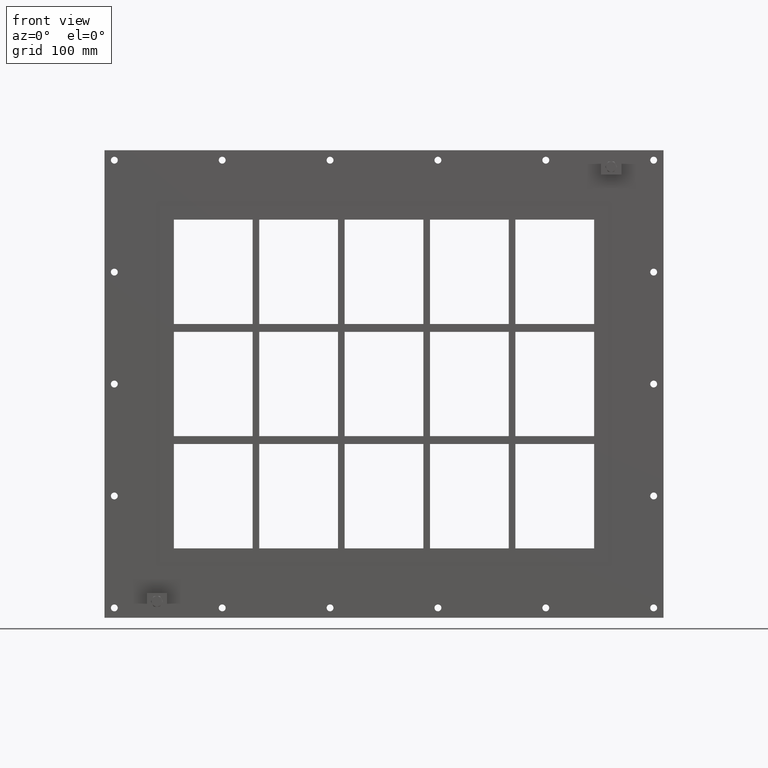
[diagram: clean part render]
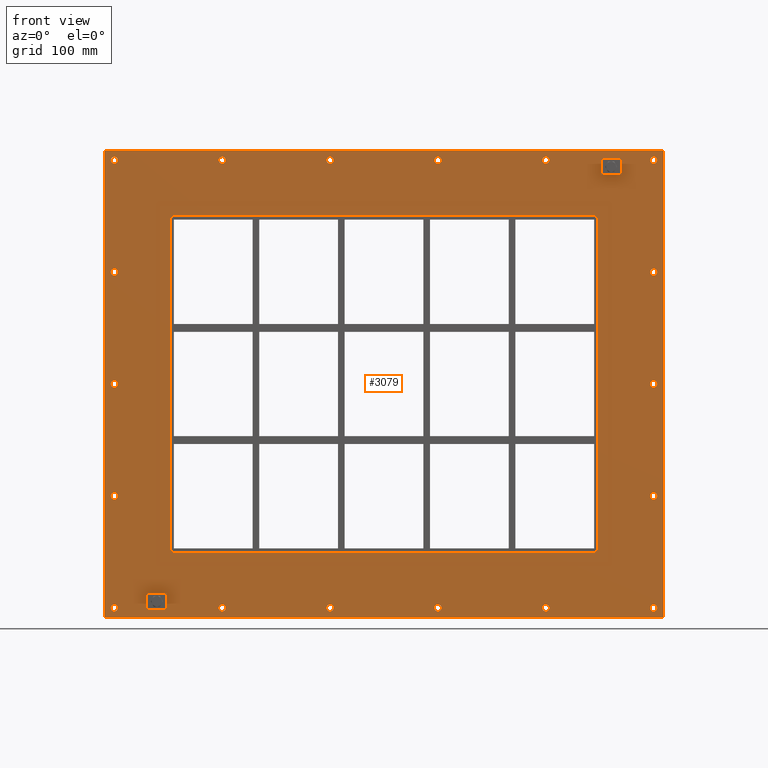
[diagram: same view with one face highlighted and labeled with its STEP entity id]
A machine part, front view. The second image highlights one B-rep face of the part: STEP entity #3079.
In plain terms, the highlighted planar face has unit normal (0, 1, 0).
Its self-contained STEP definition (entity closure, byte-faithful):
#84=CARTESIAN_POINT('',(-407.00000000000011,0.0,-342.25000000000011));
#85=VERTEX_POINT('',#84);
#86=CARTESIAN_POINT('',(-412.25000000000011,0.0,-342.25000000000011));
#87=DIRECTION('',(0.0,1.0,0.0));
#88=DIRECTION('',(1.0,0.0,0.0));
#89=AXIS2_PLACEMENT_3D('',#86,#87,#88);
#90=CIRCLE('',#89,5.25);
#91=EDGE_CURVE('',#85,#85,#90,.T.);
#112=CARTESIAN_POINT('',(417.50000000000006,0.0,-171.15000000000009));
#113=VERTEX_POINT('',#112);
#114=CARTESIAN_POINT('',(412.25000000000011,0.0,-171.15000000000009));
#115=DIRECTION('',(0.0,1.0,0.0));
#116=DIRECTION('',(1.0,0.0,0.0));
#117=AXIS2_PLACEMENT_3D('',#114,#115,#116);
#118=CIRCLE('',#117,5.25);
#119=EDGE_CURVE('',#113,#113,#118,.T.);
#140=CARTESIAN_POINT('',(-407.00000000000011,0.0,-171.15000000000009));
#141=VERTEX_POINT('',#140);
#142=CARTESIAN_POINT('',(-412.25000000000011,0.0,-171.15000000000009));
#143=DIRECTION('',(0.0,1.0,0.0));
#144=DIRECTION('',(1.0,0.0,0.0));
#145=AXIS2_PLACEMENT_3D('',#142,#143,#144);
#146=CIRCLE('',#145,5.25);
#147=EDGE_CURVE('',#141,#141,#146,.T.);
#168=CARTESIAN_POINT('',(417.50000000000006,0.0,-0.050000000000097));
#169=VERTEX_POINT('',#168);
#170=CARTESIAN_POINT('',(412.25000000000011,0.0,-0.050000000000097));
#171=DIRECTION('',(0.0,1.0,0.0));
#172=DIRECTION('',(1.0,0.0,0.0));
#173=AXIS2_PLACEMENT_3D('',#170,#171,#172);
#174=CIRCLE('',#173,5.25);
#175=EDGE_CURVE('',#169,#169,#174,.T.);
#196=CARTESIAN_POINT('',(-407.00000000000011,0.0,-0.050000000000097));
#197=VERTEX_POINT('',#196);
#198=CARTESIAN_POINT('',(-412.25000000000011,0.0,-0.050000000000097));
#199=DIRECTION('',(0.0,1.0,0.0));
#200=DIRECTION('',(1.0,0.0,0.0));
#201=AXIS2_PLACEMENT_3D('',#198,#199,#200);
#202=CIRCLE('',#201,5.25);
#203=EDGE_CURVE('',#197,#197,#202,.T.);
#224=CARTESIAN_POINT('',(417.50000000000006,0.0,171.0499999999999));
#225=VERTEX_POINT('',#224);
#226=CARTESIAN_POINT('',(412.25000000000011,0.0,171.0499999999999));
#227=DIRECTION('',(0.0,1.0,0.0));
#228=DIRECTION('',(1.0,0.0,0.0));
#229=AXIS2_PLACEMENT_3D('',#226,#227,#228);
#230=CIRCLE('',#229,5.25);
#231=EDGE_CURVE('',#225,#225,#230,.T.);
#252=CARTESIAN_POINT('',(-407.00000000000011,0.0,171.0499999999999));
#253=VERTEX_POINT('',#252);
#254=CARTESIAN_POINT('',(-412.25000000000011,0.0,171.0499999999999));
#255=DIRECTION('',(0.0,1.0,0.0));
#256=DIRECTION('',(1.0,0.0,0.0));
#257=AXIS2_PLACEMENT_3D('',#254,#255,#256);
#258=CIRCLE('',#257,5.25);
#259=EDGE_CURVE('',#253,#253,#258,.T.);
#280=CARTESIAN_POINT('',(-242.10000000000002,0.0,342.14999999999986));
#281=VERTEX_POINT('',#280);
#282=CARTESIAN_POINT('',(-247.34999999999999,0.0,342.14999999999986));
#283=DIRECTION('',(0.0,1.0,0.0));
#284=DIRECTION('',(1.0,0.0,0.0));
#285=AXIS2_PLACEMENT_3D('',#282,#283,#284);
#286=CIRCLE('',#285,5.25);
#287=EDGE_CURVE('',#281,#281,#286,.T.);
#308=CARTESIAN_POINT('',(-242.10000000000002,0.0,-342.25000000000011));
#309=VERTEX_POINT('',#308);
#310=CARTESIAN_POINT('',(-247.34999999999999,0.0,-342.25000000000011));
#311=DIRECTION('',(0.0,1.0,0.0));
#312=DIRECTION('',(1.0,0.0,0.0));
#313=AXIS2_PLACEMENT_3D('',#310,#311,#312);
#314=CIRCLE('',#313,5.25);
#315=EDGE_CURVE('',#309,#309,#314,.T.);
#336=CARTESIAN_POINT('',(-77.199999999999989,0.0,342.14999999999986));
#337=VERTEX_POINT('',#336);
#338=CARTESIAN_POINT('',(-82.449999999999974,0.0,342.14999999999986));
#339=DIRECTION('',(0.0,1.0,0.0));
#340=DIRECTION('',(1.0,0.0,0.0));
#341=AXIS2_PLACEMENT_3D('',#338,#339,#340);
#342=CIRCLE('',#341,5.25);
#343=EDGE_CURVE('',#337,#337,#342,.T.);
#364=CARTESIAN_POINT('',(-77.199999999999989,0.0,-342.25000000000011));
#365=VERTEX_POINT('',#364);
#366=CARTESIAN_POINT('',(-82.449999999999974,0.0,-342.25000000000011));
#367=DIRECTION('',(0.0,1.0,0.0));
#368=DIRECTION('',(1.0,0.0,0.0));
#369=AXIS2_PLACEMENT_3D('',#366,#367,#368);
#370=CIRCLE('',#369,5.25);
#371=EDGE_CURVE('',#365,#365,#370,.T.);
#392=CARTESIAN_POINT('',(87.700000000000031,0.0,342.14999999999986));
#393=VERTEX_POINT('',#392);
#394=CARTESIAN_POINT('',(82.450000000000045,0.0,342.14999999999986));
#395=DIRECTION('',(0.0,1.0,0.0));
#396=DIRECTION('',(1.0,0.0,0.0));
#397=AXIS2_PLACEMENT_3D('',#394,#395,#396);
#398=CIRCLE('',#397,5.25);
#399=EDGE_CURVE('',#393,#393,#398,.T.);
#420=CARTESIAN_POINT('',(87.700000000000031,0.0,-342.25000000000011));
#421=VERTEX_POINT('',#420);
#422=CARTESIAN_POINT('',(82.450000000000045,0.0,-342.25000000000011));
#423=DIRECTION('',(0.0,1.0,0.0));
#424=DIRECTION('',(1.0,0.0,0.0));
#425=AXIS2_PLACEMENT_3D('',#422,#423,#424);
#426=CIRCLE('',#425,5.25);
#427=EDGE_CURVE('',#421,#421,#426,.T.);
#448=CARTESIAN_POINT('',(252.60000000000005,0.0,342.14999999999986));
#449=VERTEX_POINT('',#448);
#450=CARTESIAN_POINT('',(247.35000000000008,0.0,342.14999999999986));
#451=DIRECTION('',(0.0,1.0,0.0));
#452=DIRECTION('',(1.0,0.0,0.0));
#453=AXIS2_PLACEMENT_3D('',#450,#451,#452);
#454=CIRCLE('',#453,5.25);
#455=EDGE_CURVE('',#449,#449,#454,.T.);
#476=CARTESIAN_POINT('',(252.60000000000005,0.0,-342.25000000000011));
#477=VERTEX_POINT('',#476);
#478=CARTESIAN_POINT('',(247.35000000000008,0.0,-342.25000000000011));
#479=DIRECTION('',(0.0,1.0,0.0));
#480=DIRECTION('',(1.0,0.0,0.0));
#481=AXIS2_PLACEMENT_3D('',#478,#479,#480);
#482=CIRCLE('',#481,5.25);
#483=EDGE_CURVE('',#477,#477,#482,.T.);
#504=CARTESIAN_POINT('',(417.50000000000006,0.0,-342.25000000000011));
#505=VERTEX_POINT('',#504);
#506=CARTESIAN_POINT('',(412.25000000000011,0.0,-342.25000000000011));
#507=DIRECTION('',(0.0,1.0,0.0));
#508=DIRECTION('',(1.0,0.0,0.0));
#509=AXIS2_PLACEMENT_3D('',#506,#507,#508);
#510=CIRCLE('',#509,5.25);
#511=EDGE_CURVE('',#505,#505,#510,.T.);
#532=CARTESIAN_POINT('',(-407.00000000000011,0.0,342.14999999999986));
#533=VERTEX_POINT('',#532);
#534=CARTESIAN_POINT('',(-412.25000000000011,0.0,342.14999999999986));
#535=DIRECTION('',(0.0,1.0,0.0));
#536=DIRECTION('',(1.0,0.0,0.0));
#537=AXIS2_PLACEMENT_3D('',#534,#535,#536);
#538=CIRCLE('',#537,5.25);
#539=EDGE_CURVE('',#533,#533,#538,.T.);
#560=CARTESIAN_POINT('',(417.50000000000006,0.0,342.14999999999986));
#561=VERTEX_POINT('',#560);
#562=CARTESIAN_POINT('',(412.25000000000011,0.0,342.14999999999986));
#563=DIRECTION('',(0.0,1.0,0.0));
#564=DIRECTION('',(1.0,0.0,0.0));
#565=AXIS2_PLACEMENT_3D('',#562,#563,#564);
#566=CIRCLE('',#565,5.25);
#567=EDGE_CURVE('',#561,#561,#566,.T.);
#2916=CARTESIAN_POINT('',(4.347489E-014,0.0,-3.260617E-014));
#2917=DIRECTION('',(0.0,1.0,0.0));
#2918=DIRECTION('',(0.0,0.0,1.0));
#2919=AXIS2_PLACEMENT_3D('',#2916,#2917,#2918);
#2920=PLANE('',#2919);
#2921=CARTESIAN_POINT('',(-427.24999999999994,0.0,357.25));
#2922=VERTEX_POINT('',#2921);
#2923=CARTESIAN_POINT('',(427.25,0.0,357.25));
#2924=VERTEX_POINT('',#2923);
#2925=CARTESIAN_POINT('',(-427.24999999999994,0.0,357.25));
#2926=DIRECTION('',(1.0,0.0,0.0));
#2927=VECTOR('',#2926,854.49999999999989);
#2928=LINE('',#2925,#2927);
#2929=EDGE_CURVE('',#2922,#2924,#2928,.T.);
#2930=ORIENTED_EDGE('',*,*,#2929,.F.);
#2931=CARTESIAN_POINT('',(-427.24999999999994,0.0,-357.25000000000011));
#2932=VERTEX_POINT('',#2931);
#2933=CARTESIAN_POINT('',(-427.24999999999994,0.0,-357.25000000000011));
#2934=DIRECTION('',(0.0,0.0,1.0));
#2935=VECTOR('',#2934,714.50000000000023);
#2936=LINE('',#2933,#2935);
#2937=EDGE_CURVE('',#2932,#2922,#2936,.T.);
#2938=ORIENTED_EDGE('',*,*,#2937,.F.);
#2939=CARTESIAN_POINT('',(427.25,0.0,-357.25000000000011));
#2940=VERTEX_POINT('',#2939);
#2941=CARTESIAN_POINT('',(427.25,0.0,-357.25000000000011));
#2942=DIRECTION('',(-1.0,0.0,0.0));
#2943=VECTOR('',#2942,854.49999999999989);
#2944=LINE('',#2941,#2943);
#2945=EDGE_CURVE('',#2940,#2932,#2944,.T.);
#2946=ORIENTED_EDGE('',*,*,#2945,.F.);
#2947=CARTESIAN_POINT('',(427.25,0.0,357.25));
#2948=DIRECTION('',(0.0,0.0,-1.0));
#2949=VECTOR('',#2948,714.50000000000023);
#2950=LINE('',#2947,#2949);
#2951=EDGE_CURVE('',#2924,#2940,#2950,.T.);
#2952=ORIENTED_EDGE('',*,*,#2951,.F.);
#2953=EDGE_LOOP('',(#2930,#2938,#2946,#2952));
#2954=FACE_OUTER_BOUND('',#2953,.T.);
#2955=ORIENTED_EDGE('',*,*,#91,.T.);
#2956=EDGE_LOOP('',(#2955));
#2957=FACE_BOUND('',#2956,.T.);
#2958=ORIENTED_EDGE('',*,*,#119,.T.);
#2959=EDGE_LOOP('',(#2958));
#2960=FACE_BOUND('',#2959,.T.);
#2961=ORIENTED_EDGE('',*,*,#147,.T.);
#2962=EDGE_LOOP('',(#2961));
#2963=FACE_BOUND('',#2962,.T.);
#2964=ORIENTED_EDGE('',*,*,#175,.T.);
#2965=EDGE_LOOP('',(#2964));
#2966=FACE_BOUND('',#2965,.T.);
#2967=ORIENTED_EDGE('',*,*,#203,.T.);
#2968=EDGE_LOOP('',(#2967));
#2969=FACE_BOUND('',#2968,.T.);
#2970=ORIENTED_EDGE('',*,*,#231,.T.);
#2971=EDGE_LOOP('',(#2970));
#2972=FACE_BOUND('',#2971,.T.);
#2973=ORIENTED_EDGE('',*,*,#259,.T.);
#2974=EDGE_LOOP('',(#2973));
#2975=FACE_BOUND('',#2974,.T.);
#2976=ORIENTED_EDGE('',*,*,#287,.T.);
#2977=EDGE_LOOP('',(#2976));
#2978=FACE_BOUND('',#2977,.T.);
#2979=ORIENTED_EDGE('',*,*,#315,.T.);
#2980=EDGE_LOOP('',(#2979));
#2981=FACE_BOUND('',#2980,.T.);
#2982=ORIENTED_EDGE('',*,*,#343,.T.);
#2983=EDGE_LOOP('',(#2982));
#2984=FACE_BOUND('',#2983,.T.);
#2985=ORIENTED_EDGE('',*,*,#371,.T.);
#2986=EDGE_LOOP('',(#2985));
#2987=FACE_BOUND('',#2986,.T.);
#2988=ORIENTED_EDGE('',*,*,#399,.T.);
#2989=EDGE_LOOP('',(#2988));
#2990=FACE_BOUND('',#2989,.T.);
#2991=ORIENTED_EDGE('',*,*,#427,.T.);
#2992=EDGE_LOOP('',(#2991));
#2993=FACE_BOUND('',#2992,.T.);
#2994=ORIENTED_EDGE('',*,*,#455,.T.);
#2995=EDGE_LOOP('',(#2994));
#2996=FACE_BOUND('',#2995,.T.);
#2997=ORIENTED_EDGE('',*,*,#483,.T.);
#2998=EDGE_LOOP('',(#2997));
#2999=FACE_BOUND('',#2998,.T.);
#3000=ORIENTED_EDGE('',*,*,#511,.T.);
#3001=EDGE_LOOP('',(#3000));
#3002=FACE_BOUND('',#3001,.T.);
#3003=ORIENTED_EDGE('',*,*,#539,.T.);
#3004=EDGE_LOOP('',(#3003));
#3005=FACE_BOUND('',#3004,.T.);
#3006=ORIENTED_EDGE('',*,*,#567,.T.);
#3007=EDGE_LOOP('',(#3006));
#3008=FACE_BOUND('',#3007,.T.);
#3009=CARTESIAN_POINT('',(-321.25,0.0,257.25));
#3010=VERTEX_POINT('',#3009);
#3011=CARTESIAN_POINT('',(-327.25,0.0,251.25));
#3012=VERTEX_POINT('',#3011);
#3013=CARTESIAN_POINT('',(-321.25,0.0,251.25));
#3014=DIRECTION('',(0.0,-1.0,0.0));
#3015=DIRECTION('',(-0.707106781186543,0.0,0.707106781186552));
#3016=AXIS2_PLACEMENT_3D('',#3013,#3014,#3015);
#3017=CIRCLE('',#3016,6.000000000000001);
#3018=EDGE_CURVE('',#3010,#3012,#3017,.T.);
#3019=ORIENTED_EDGE('',*,*,#3018,.F.);
#3020=CARTESIAN_POINT('',(321.25,0.0,257.25));
#3021=VERTEX_POINT('',#3020);
#3022=CARTESIAN_POINT('',(321.25,0.0,257.25));
#3023=DIRECTION('',(-1.0,0.0,0.0));
#3024=VECTOR('',#3023,642.5);
#3025=LINE('',#3022,#3024);
#3026=EDGE_CURVE('',#3021,#3010,#3025,.T.);
#3027=ORIENTED_EDGE('',*,*,#3026,.F.);
#3028=CARTESIAN_POINT('',(327.25,0.0,251.25));
#3029=VERTEX_POINT('',#3028);
#3030=CARTESIAN_POINT('',(321.25,0.0,251.25));
#3031=DIRECTION('',(0.0,-1.0,0.0));
#3032=DIRECTION('',(0.707106781186543,0.0,0.707106781186552));
#3033=AXIS2_PLACEMENT_3D('',#3030,#3031,#3032);
#3034=CIRCLE('',#3033,6.000000000000001);
#3035=EDGE_CURVE('',#3029,#3021,#3034,.T.);
#3036=ORIENTED_EDGE('',*,*,#3035,.F.);
#3037=CARTESIAN_POINT('',(327.25,0.0,-251.25));
#3038=VERTEX_POINT('',#3037);
#3039=CARTESIAN_POINT('',(327.25,0.0,-251.25));
#3040=DIRECTION('',(0.0,0.0,1.0));
#3041=VECTOR('',#3040,502.5);
#3042=LINE('',#3039,#3041);
#3043=EDGE_CURVE('',#3038,#3029,#3042,.T.);
#3044=ORIENTED_EDGE('',*,*,#3043,.F.);
#3045=CARTESIAN_POINT('',(321.25,0.0,-257.25));
#3046=VERTEX_POINT('',#3045);
#3047=CARTESIAN_POINT('',(321.25,0.0,-251.25));
#3048=DIRECTION('',(0.0,-1.0,0.0));
#3049=DIRECTION('',(0.707106781186543,0.0,-0.707106781186552));
#3050=AXIS2_PLACEMENT_3D('',#3047,#3048,#3049);
#3051=CIRCLE('',#3050,6.000000000000001);
#3052=EDGE_CURVE('',#3046,#3038,#3051,.T.);
#3053=ORIENTED_EDGE('',*,*,#3052,.F.);
#3054=CARTESIAN_POINT('',(-321.25,0.0,-257.25));
#3055=VERTEX_POINT('',#3054);
#3056=CARTESIAN_POINT('',(-321.25,0.0,-257.25));
#3057=DIRECTION('',(1.0,0.0,0.0));
#3058=VECTOR('',#3057,642.5);
#3059=LINE('',#3056,#3058);
#3060=EDGE_CURVE('',#3055,#3046,#3059,.T.);
#3061=ORIENTED_EDGE('',*,*,#3060,.F.);
#3062=CARTESIAN_POINT('',(-327.25,0.0,-251.25));
#3063=VERTEX_POINT('',#3062);
#3064=CARTESIAN_POINT('',(-321.25,0.0,-251.25));
#3065=DIRECTION('',(0.0,-1.0,0.0));
#3066=DIRECTION('',(-0.707106781186543,0.0,-0.707106781186552));
#3067=AXIS2_PLACEMENT_3D('',#3064,#3065,#3066);
#3068=CIRCLE('',#3067,6.000000000000001);
#3069=EDGE_CURVE('',#3063,#3055,#3068,.T.);
#3070=ORIENTED_EDGE('',*,*,#3069,.F.);
#3071=CARTESIAN_POINT('',(-327.25,0.0,251.25000000000003));
#3072=DIRECTION('',(0.0,0.0,-1.0));
#3073=VECTOR('',#3072,502.5);
#3074=LINE('',#3071,#3073);
#3075=EDGE_CURVE('',#3012,#3063,#3074,.T.);
#3076=ORIENTED_EDGE('',*,*,#3075,.F.);
#3077=EDGE_LOOP('',(#3019,#3027,#3036,#3044,#3053,#3061,#3070,#3076));
#3078=FACE_BOUND('',#3077,.T.);
#3079=ADVANCED_FACE('',(#2954,#2957,#2960,#2963,#2966,#2969,#2972,#2975,#2978,#2981,#2984,#2987,#2990,#2993,#2996,#2999,#3002,#3005,#3008,#3078),#2920,.F.);